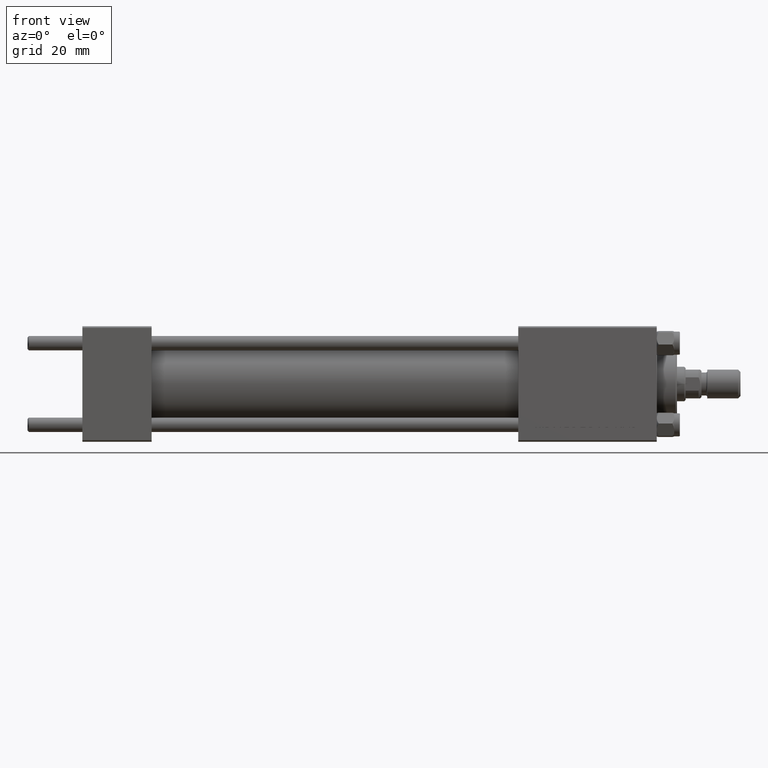
[diagram: clean part render]
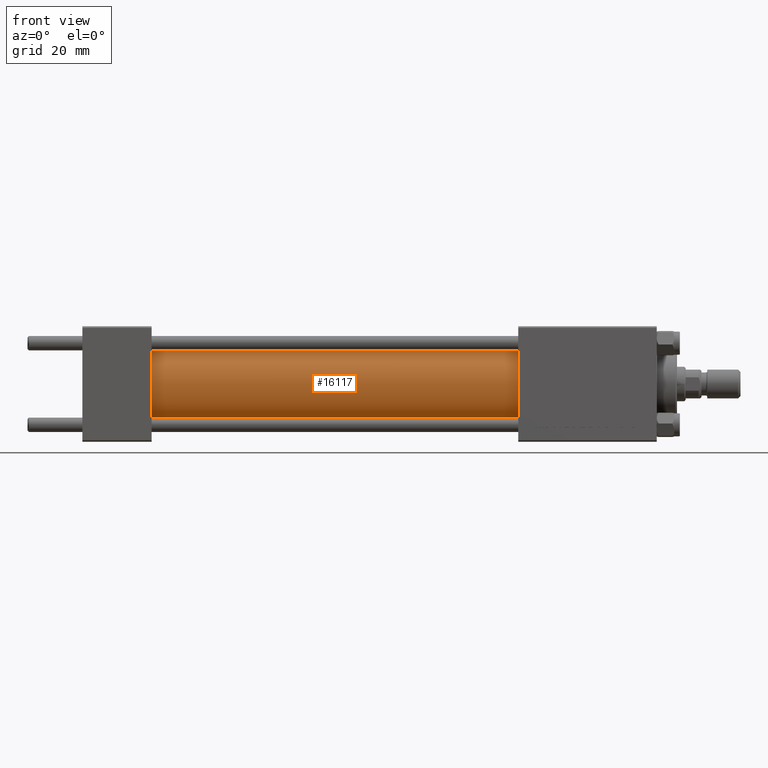
[diagram: same view with one face highlighted and labeled with its STEP entity id]
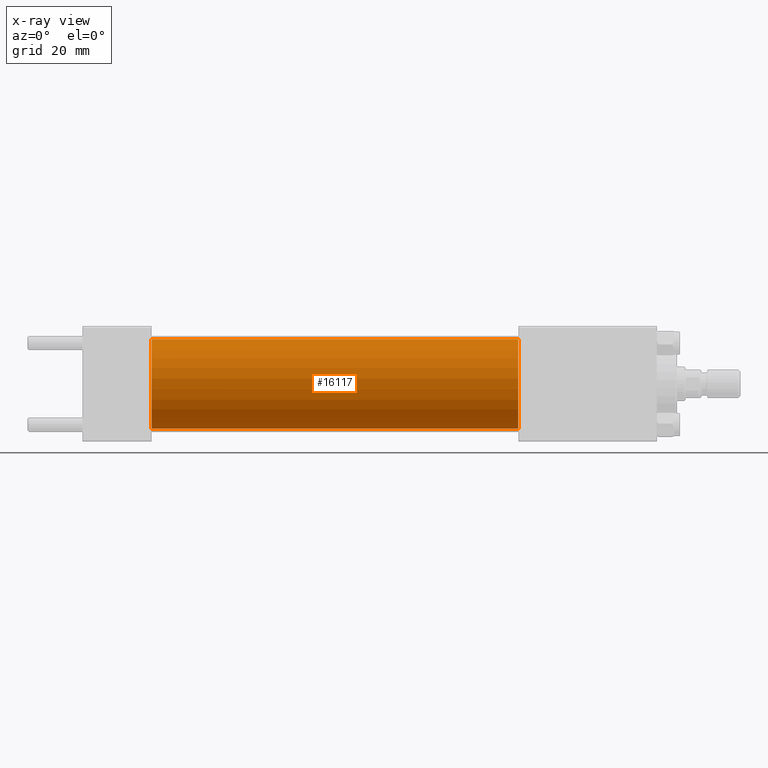
[diagram: x-ray of the same camera — body ghosted, the highlighted face saturated]
A machine part, front view. The second image highlights one B-rep face of the part: STEP entity #16117.
The next image is the same camera in x-ray: the body ghosted, the highlighted face saturated — about 0% of this face is hidden behind the body in this view.
In plain terms, the highlighted cylindrical surface (partial cylindrical patch) has radius 15.5 mm, axis along (-1, -0, -0).
Its self-contained STEP definition (entity closure, byte-faithful):
#529 = ORIENTED_EDGE ( 'NONE', *, *, #40793, .F. ) ;
#3102 = CARTESIAN_POINT ( 'NONE',  ( 23.99999999999999289, 1.898202538678397557E-15, -15.50000000000000000 ) ) ;
#3881 = DIRECTION ( 'NONE',  ( 0.000000000000000000, 0.000000000000000000, -1.000000000000000000 ) ) ;
#4260 = VERTEX_POINT ( 'NONE', #11413 ) ;
#4377 = DIRECTION ( 'NONE',  ( -1.000000000000000000, -0.000000000000000000, -0.000000000000000000 ) ) ;
#4637 = DIRECTION ( 'NONE',  ( 1.000000000000000000, 0.000000000000000000, 0.000000000000000000 ) ) ;
#6973 = VECTOR ( 'NONE', #36868, 1000.000000000000000 ) ;
#6983 = CIRCLE ( 'NONE', #23260, 15.50000000000000000 ) ;
#8444 = CARTESIAN_POINT ( 'NONE',  ( 151.0000000000000000, 0.000000000000000000, 0.000000000000000000 ) ) ;
#11413 = CARTESIAN_POINT ( 'NONE',  ( 151.0000000000000000, 0.000000000000000000, 15.50000000000000000 ) ) ;
#11994 = FACE_OUTER_BOUND ( 'NONE', #48592, .T. ) ;
#13740 = EDGE_CURVE ( 'NONE', #4260, #24548, #36009, .T. ) ;
#16117 = ADVANCED_FACE ( 'NONE', ( #11994 ), #27541, .T. ) ;
#16645 = ORIENTED_EDGE ( 'NONE', *, *, #17409, .T. ) ;
#17409 = EDGE_CURVE ( 'NONE', #24548, #19060, #6983, .T. ) ;
#17566 = DIRECTION ( 'NONE',  ( 0.000000000000000000, 0.000000000000000000, 1.000000000000000000 ) ) ;
#18582 = CARTESIAN_POINT ( 'NONE',  ( 151.0000000000000000, 1.898202538678397557E-15, -15.50000000000000000 ) ) ;
#19060 = VERTEX_POINT ( 'NONE', #3102 ) ;
#21326 = LINE ( 'NONE', #25903, #6973 ) ;
#23260 = AXIS2_PLACEMENT_3D ( 'NONE', #44242, #48575, #40666 ) ;
#24548 = VERTEX_POINT ( 'NONE', #35091 ) ;
#25903 = CARTESIAN_POINT ( 'NONE',  ( 151.0000000000000000, 1.898202538678397557E-15, -15.50000000000000000 ) ) ;
#27541 = CYLINDRICAL_SURFACE ( 'NONE', #30530, 15.50000000000000000 ) ;
#27849 = ORIENTED_EDGE ( 'NONE', *, *, #13740, .T. ) ;
#30530 = AXIS2_PLACEMENT_3D ( 'NONE', #43107, #4377, #17566 ) ;
#30583 = CIRCLE ( 'NONE', #41176, 15.50000000000000000 ) ;
#32179 = DIRECTION ( 'NONE',  ( -1.000000000000000000, -0.000000000000000000, -0.000000000000000000 ) ) ;
#35091 = CARTESIAN_POINT ( 'NONE',  ( 23.99999999999999289, 0.000000000000000000, 15.50000000000000000 ) ) ;
#36009 = LINE ( 'NONE', #40094, #36966 ) ;
#36868 = DIRECTION ( 'NONE',  ( -1.000000000000000000, -0.000000000000000000, -0.000000000000000000 ) ) ;
#36966 = VECTOR ( 'NONE', #32179, 1000.000000000000000 ) ;
#39502 = EDGE_CURVE ( 'NONE', #46882, #19060, #21326, .T. ) ;
#40094 = CARTESIAN_POINT ( 'NONE',  ( 151.0000000000000000, 0.000000000000000000, 15.50000000000000000 ) ) ;
#40666 = DIRECTION ( 'NONE',  ( 0.000000000000000000, 0.000000000000000000, 1.000000000000000000 ) ) ;
#40793 = EDGE_CURVE ( 'NONE', #4260, #46882, #30583, .T. ) ;
#41176 = AXIS2_PLACEMENT_3D ( 'NONE', #8444, #4637, #3881 ) ;
#43107 = CARTESIAN_POINT ( 'NONE',  ( 151.0000000000000000, 0.000000000000000000, 0.000000000000000000 ) ) ;
#43882 = ORIENTED_EDGE ( 'NONE', *, *, #39502, .F. ) ;
#44242 = CARTESIAN_POINT ( 'NONE',  ( 23.99999999999999289, 0.000000000000000000, 0.000000000000000000 ) ) ;
#46882 = VERTEX_POINT ( 'NONE', #18582 ) ;
#48575 = DIRECTION ( 'NONE',  ( 1.000000000000000000, 0.000000000000000000, 0.000000000000000000 ) ) ;
#48592 = EDGE_LOOP ( 'NONE', ( #43882, #529, #27849, #16645 ) ) ;